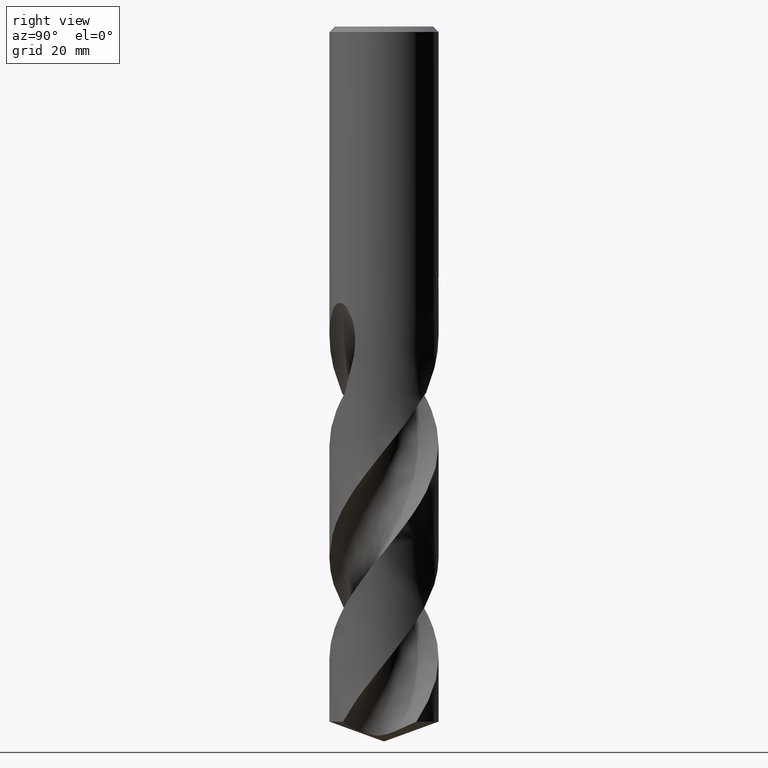
[diagram: clean part render]
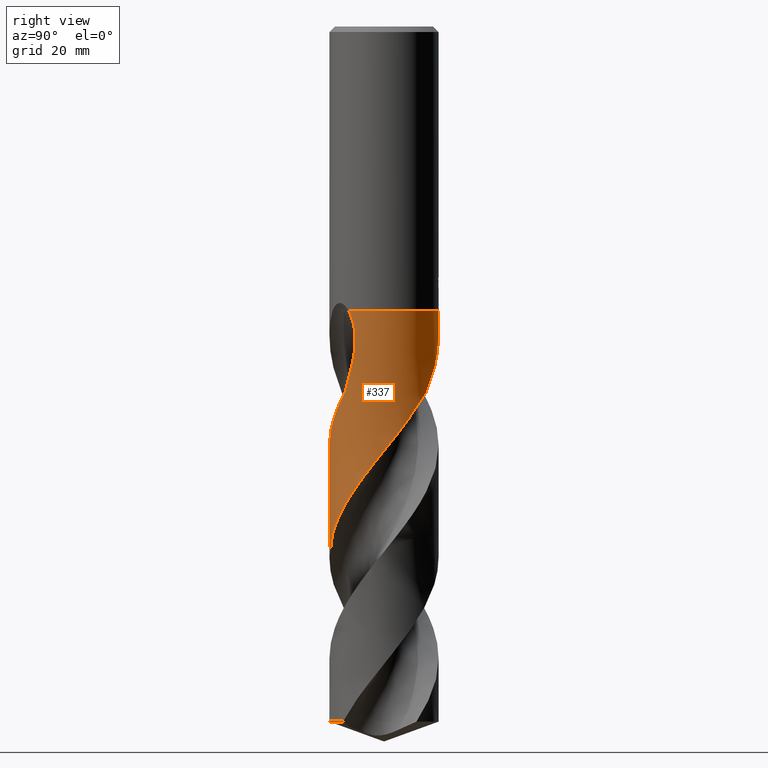
[diagram: same view with one face highlighted and labeled with its STEP entity id]
A machine part, right view. The second image highlights one B-rep face of the part: STEP entity #337.
In plain terms, the highlighted conical surface has half-angle 0 deg.
Its self-contained STEP definition (entity closure, byte-faithful):
#277=EDGE_CURVE('',#309,#495,#730,.T.);
#283=VERTEX_POINT('',#736);
#293=EDGE_CURVE('',#283,#419,#746,.T.);
#309=VERTEX_POINT('',#764);
#329=VERTEX_POINT('',#788);
#337=ADVANCED_FACE('',(#796),#797,.T.);
#343=EDGE_CURVE('',#421,#309,#803,.T.);
#407=VERTEX_POINT('',#875);
#419=VERTEX_POINT('',#889);
#421=VERTEX_POINT('',#891);
#443=EDGE_CURVE('',#407,#421,#914,.T.);
#463=EDGE_CURVE('',#329,#419,#935,.T.);
#495=VERTEX_POINT('',#968);
#545=EDGE_CURVE('',#589,#283,#1022,.T.);
#589=VERTEX_POINT('',#1069);
#601=EDGE_CURVE('',#329,#407,#1085,.T.);
#627=EDGE_CURVE('',#589,#495,#1113,.T.);
#730=B_SPLINE_CURVE_WITH_KNOTS('',3,(#1351,#1352,#1353,#1354,#1355,#1356,#1357,#1358,#1359,#1360,#1361,#1362,#1363,#1364,#1365,#1366,#1367,#1368,#1369,#1370,#1371,#1372,#1373,#1374,#1375,#1376,#1377,#1378,#1379,#1380,#1381,#1382,#1383,#1384,#1385,#1386,#1387,#1388,#1389,#1390,#1391,#1392,#1393,#1394,#1395,#1396,#1397,#1398,#1399,#1400,#1401,#1402,#1403,#1404,#1405,#1406,#1407,#1408,#1409,#1410,#1411,#1412,#1413,#1414,#1415,#1416,#1417,#1418,#1419,#1420,#1421,#1422,#1423,#1424,#1425,#1426,#1427,#1428,#1429,#1430,#1431,#1432,#1433,#1434,#1435,#1436,#1437,#1438,#1439,#1440,#1441,#1442,#1443,#1444),.UNSPECIFIED.,.F.,.F.,(4,2,2,2,2,2,2,2,2,2,2,2,2,2,2,2,2,2,2,2,2,2,2,2,2,2,2,2,2,2,2,2,2,2,2,2,2,2,2,2,2,2,2,2,2,2,4),(0.0,0.245189714686137,0.6198069740131,1.61410863201688,1.99983501323209,2.25905782693496,2.51206865555544,2.93972724412796,3.46358339691825,4.2248642811972,4.95648885570448,6.19320706034342,6.58149060093244,9.26436553136393,11.3031236955126,14.4880687737373,15.7102857219913,18.1528929593855,19.3836956176484,21.8224498703746,24.2763247446489,26.723621235269,29.1755935563908,31.6275561210472,34.07701767221,36.5334778140359,38.9806614643913,40.2100754367975,41.4250255356435,43.8690684822928,45.0990380407961,46.3181794062362,48.7593737046021,49.9896383405279,52.4271954940162,54.8812068582588,57.3249314680083,59.7766046714034,61.8976178964508,65.6010818575001,66.9940257141373,69.4397185412861,70.3580485187293,71.9641503313468,74.3760397664292,75.5817410566383,76.7878755449738),.UNSPECIFIED.);
#736=CARTESIAN_POINT('',(6.37210832433759,7.7067916096319,-67.125));
#746=B_SPLINE_CURVE_WITH_KNOTS('',3,(#1560,#1561,#1562,#1563,#1564,#1565,#1566,#1567,#1568,#1569,#1570,#1571,#1572,#1573),.UNSPECIFIED.,.F.,.F.,(4,2,2,2,2,2,4),(0.0,4.19901868503116,7.08405629255473,9.51715381814814,12.2384960017971,15.5642095157327,18.027615464297),.UNSPECIFIED.);
#764=CARTESIAN_POINT('',(6.95071689994662,-7.18929314941194,-67.125));
#788=CARTESIAN_POINT('',(-1.22455901755798E-015,9.9999,-52.0));
#796=FACE_OUTER_BOUND('',#2713,.T.);
#797=CONICAL_SURFACE('',#2714,9.99995,1.32695866534931E-006);
#803=B_SPLINE_CURVE_WITH_KNOTS('',3,(#2735,#2736,#2737,#2738),.UNSPECIFIED.,.F.,.F.,(4,4),(0.0,5.74706222105386),.UNSPECIFIED.);
#875=CARTESIAN_POINT('',(7.57965581687476,-6.52279217112707,-52.0));
#889=CARTESIAN_POINT('',(-9.34158471986024E-012,9.99990596502292,-56.4952590256855));
#891=CARTESIAN_POINT('',(8.13633816669059,-5.8136268654027,-61.6493312696097));
#914=B_SPLINE_CURVE_WITH_KNOTS('',3,(#3092,#3093,#3094,#3095,#3096,#3097,#3098,#3099,#3100,#3101),.UNSPECIFIED.,.F.,.F.,(4,2,2,2,4),(0.0,1.87970577133632,4.50636330676896,5.88290367057328,7.31960815038823),.UNSPECIFIED.);
#935=LINE('',#3204,#3205);
#968=CARTESIAN_POINT('',(-1.7151251788043E-014,-9.99993277754765,-76.7012574784816));
#1022=B_SPLINE_CURVE_WITH_KNOTS('',3,(#3840,#3841,#3842,#3843,#3844,#3845,#3846,#3847,#3848,#3849,#3850,#3851,#3852,#3853,#3854,#3855,#3856,#3857,#3858,#3859,#3860,#3861,#3862,#3863,#3864,#3865,#3866,#3867,#3868,#3869,#3870,#3871,#3872,#3873,#3874,#3875,#3876,#3877,#3878,#3879,#3880,#3881,#3882,#3883,#3884,#3885,#3886,#3887,#3888,#3889,#3890,#3891,#3892,#3893,#3894,#3895,#3896,#3897,#3898,#3899,#3900,#3901,#3902,#3903,#3904,#3905,#3906,#3907,#3908,#3909,#3910,#3911,#3912,#3913),.UNSPECIFIED.,.F.,.F.,(4,2,2,2,2,2,2,2,2,2,2,2,2,2,2,2,2,2,2,2,2,2,2,2,2,2,2,2,2,2,2,2,2,2,2,2,4),(0.0,4.99592086716757,6.53604494095048,9.3263019287885,11.3874317924821,14.9646787382594,16.3671879768931,19.882811568406,21.6342220701027,25.2652974673582,27.1241796994681,30.6439169486438,32.422906975393,35.4845190829346,37.6175829397097,39.6257175832861,40.8447834917092,42.3959529905057,45.6213434194011,48.7059139801822,50.3008407222187,53.6772413643839,55.4400026098076,56.2606226404963,57.8273328603964,61.4655001658289,63.2560189298873,66.5979523775087,68.2518061491661,70.3528105407871,73.3766050868999,74.7918547087921,76.656471941024,77.6835396763988,79.2175427373027,81.06753591057,83.7478990253079),.UNSPECIFIED.);
#1069=CARTESIAN_POINT('',(2.38867511773506E-015,-9.999960090411,-97.2843125862539));
#1085=CIRCLE('',#4876,9.9999);
#1113=LINE('',#5075,#5076);
#1351=CARTESIAN_POINT('',(6.95071689994662,-7.18929314941194,-67.125));
#1352=CARTESIAN_POINT('',(6.91542676468752,-7.22341230432376,-67.1903472797881));
#1353=CARTESIAN_POINT('',(6.87983616574976,-7.2573196202226,-67.2556671590033));
#1354=CARTESIAN_POINT('',(6.7890022409996,-7.34258317628931,-67.4206161697279));
#1355=CARTESIAN_POINT('',(6.73338936534004,-7.39362301535151,-67.5199926686623));
#1356=CARTESIAN_POINT('',(6.52654132844895,-7.57914311116936,-67.8827209058262));
#1357=CARTESIAN_POINT('',(6.37303751737425,-7.70882295783798,-68.1386436852246));
#1358=CARTESIAN_POINT('',(6.1471159037275,-7.88783207117327,-68.4969302810754));
#1359=CARTESIAN_POINT('',(6.0831822352579,-7.93725022697438,-68.5964727526612));
#1360=CARTESIAN_POINT('',(5.97464383896714,-8.01904356782231,-68.7628143235824));
#1361=CARTESIAN_POINT('',(5.93067786949201,-8.05161569135795,-68.829491536314));
#1362=CARTESIAN_POINT('',(5.84305851392668,-8.11541640731246,-68.9611968083209));
#1363=CARTESIAN_POINT('',(5.7994874234982,-8.14661131003523,-69.0261291430394));
#1364=CARTESIAN_POINT('',(5.68145764159558,-8.22968523806396,-69.2008320790926));
#1365=CARTESIAN_POINT('',(5.60630999596699,-8.28107127786501,-69.3110771530292));
#1366=CARTESIAN_POINT('',(5.43647101466543,-8.39379793046193,-69.5586493423897));
#1367=CARTESIAN_POINT('',(5.34216613728219,-8.45412319080527,-69.6950235588217));
#1368=CARTESIAN_POINT('',(5.10897462302021,-8.59785951637597,-70.0305540273144));
#1369=CARTESIAN_POINT('',(4.97052150177573,-8.67859899282644,-70.2286511638398));
#1370=CARTESIAN_POINT('',(4.69535239422619,-8.83039517265335,-70.6200006426819));
#1371=CARTESIAN_POINT('',(4.55896513403902,-8.9015696481345,-70.8125742460425));
#1372=CARTESIAN_POINT('',(4.18820344643911,-9.08432252762162,-71.3299348024432));
#1373=CARTESIAN_POINT('',(3.95043441100517,-9.19024149732999,-71.6553731169679));
#1374=CARTESIAN_POINT('',(3.63234498655725,-9.31725822228393,-72.081499588104));
#1375=CARTESIAN_POINT('',(3.555971734607,-9.34667243514247,-72.183095291523));
#1376=CARTESIAN_POINT('',(2.9496798885917,-9.57168216932252,-72.98584925086));
#1377=CARTESIAN_POINT('',(2.40443801524195,-9.72297321091038,-73.6845467663887));
#1378=CARTESIAN_POINT('',(1.42765320745381,-9.90679574171289,-74.9196358329038));
#1379=CARTESIAN_POINT('',(1.00150805464463,-9.95888035711133,-75.4537124009734));
#1380=CARTESIAN_POINT('',(-0.094829847064595,-10.0218742983325,-76.820774886379));
#1381=CARTESIAN_POINT('',(-0.765712005616832,-9.99307713691967,-77.6497317236758));
#1382=CARTESIAN_POINT('',(-1.68363948400793,-9.86053869974695,-78.8021178777434));
#1383=CARTESIAN_POINT('',(-1.93660559086774,-9.8139876331698,-79.1215778166864));
#1384=CARTESIAN_POINT('',(-2.68870536149723,-9.64538815250792,-80.0802864591181));
#1385=CARTESIAN_POINT('',(-3.18066709310061,-9.49453457411013,-80.7188758667787));
#1386=CARTESIAN_POINT('',(-3.89988967095272,-9.21176943356934,-81.679706753129));
#1387=CARTESIAN_POINT('',(-4.13714828650697,-9.10768375377343,-82.0014399341293));
#1388=CARTESIAN_POINT('',(-4.83181319441872,-8.7701684746079,-82.9610027166094));
#1389=CARTESIAN_POINT('',(-5.27537037502964,-8.51072313054636,-83.5976748890698));
#1390=CARTESIAN_POINT('',(-6.12110169008951,-7.92447862789392,-84.8776656085687));
#1391=CARTESIAN_POINT('',(-6.52200419043612,-7.59796343016022,-85.5187010620776));
#1392=CARTESIAN_POINT('',(-7.26898332340254,-6.88665916032331,-86.8004381511128));
#1393=CARTESIAN_POINT('',(-7.61385940688033,-6.50331003167078,-87.4392140051587));
#1394=CARTESIAN_POINT('',(-8.24195502133223,-5.68639791975365,-88.7210002597905));
#1395=CARTESIAN_POINT('',(-8.52429966566445,-5.25372202962833,-89.3616499368296));
#1396=CARTESIAN_POINT('',(-9.01980163532856,-4.34838939517647,-90.6441846938658));
#1397=CARTESIAN_POINT('',(-9.23207041283446,-3.87736054329047,-91.283996113385));
#1398=CARTESIAN_POINT('',(-9.58180437701323,-2.90750157792703,-92.5663885951295));
#1399=CARTESIAN_POINT('',(-9.71890830181364,-2.4099068398868,-93.2065287812782));
#1400=CARTESIAN_POINT('',(-9.91547556171757,-1.39632685433278,-94.4897151250936));
#1401=CARTESIAN_POINT('',(-9.97437422535803,-0.882068922514831,-95.1306113779449));
#1402=CARTESIAN_POINT('',(-10.0120958199149,0.148812045761002,-96.4136114302241));
#1403=CARTESIAN_POINT('',(-9.99116847008372,0.664081512236491,-97.0532719449332));
#1404=CARTESIAN_POINT('',(-9.9002095176172,1.43248709594514,-98.0150008998875));
#1405=CARTESIAN_POINT('',(-9.85982951811306,1.68818515078486,-98.3363930024092));
#1406=CARTESIAN_POINT('',(-9.75990031211985,2.19294400367073,-98.9756934486478));
#1407=CARTESIAN_POINT('',(-9.70064094512306,2.44175431347708,-99.2932679288823));
#1408=CARTESIAN_POINT('',(-9.49370842712579,3.18326989782187,-100.250647520562));
#1409=CARTESIAN_POINT('',(-9.31746397297871,3.66725266874855,-100.889655608836));
#1410=CARTESIAN_POINT('',(-8.99768784906364,4.37126348691714,-101.850842549109));
#1411=CARTESIAN_POINT('',(-8.88150804778188,4.60273768796067,-102.172428670045));
#1412=CARTESIAN_POINT('',(-8.63250383236329,5.05421593123131,-102.813033208165));
#1413=CARTESIAN_POINT('',(-8.49997857059905,5.27404420358333,-103.131659889868));
#1414=CARTESIAN_POINT('',(-8.07720941198032,5.91793744094487,-104.089416511432));
#1415=CARTESIAN_POINT('',(-7.76255061069024,6.3250445221159,-104.727836031049));
#1416=CARTESIAN_POINT('',(-7.24434998311845,6.89825071470573,-105.688494934218));
#1417=CARTESIAN_POINT('',(-7.06328337674792,7.08354088780518,-106.010210889066));
#1418=CARTESIAN_POINT('',(-6.50252817733116,7.61445725638917,-106.969703614345));
#1419=CARTESIAN_POINT('',(-6.10337496815433,7.93796686417797,-107.606438542713));
#1420=CARTESIAN_POINT('',(-5.25642022059384,8.52268428344663,-108.886633861566));
#1421=CARTESIAN_POINT('',(-4.80929946333799,8.78277307653942,-109.527888222285));
#1422=CARTESIAN_POINT('',(-3.880516099139,9.23070202298288,-110.809165419415));
#1423=CARTESIAN_POINT('',(-3.40069229840329,9.41802761861542,-111.447300993242));
#1424=CARTESIAN_POINT('',(-2.41521004106365,9.71763702913455,-112.728535421859));
#1425=CARTESIAN_POINT('',(-1.91064437883532,9.82931795802813,-113.369305746618));
#1426=CARTESIAN_POINT('',(-0.957408464300018,9.96405713259914,-114.565622837597));
#1427=CARTESIAN_POINT('',(-0.511693338517306,9.99685264875924,-115.119429549578));
#1428=CARTESIAN_POINT('',(0.71396204383677,10.0048663084566,-116.643827473273));
#1429=CARTESIAN_POINT('',(1.49149373952036,9.91883663203927,-117.610258668264));
#1430=CARTESIAN_POINT('',(2.53708215086357,9.6772424088374,-118.943644307828));
#1431=CARTESIAN_POINT('',(2.81973895850649,9.59868765074986,-119.307852263835));
#1432=CARTESIAN_POINT('',(3.58787754550079,9.34836333384641,-120.312537106785));
#1433=CARTESIAN_POINT('',(4.06434717378465,9.15128907767789,-120.951997363172));
#1434=CARTESIAN_POINT('',(4.69604903364095,8.83087566035089,-121.832250060942));
#1435=CARTESIAN_POINT('',(4.86593828911359,8.73841560641178,-122.072460123856));
#1436=CARTESIAN_POINT('',(5.32533422040068,8.47083824208389,-122.732933009842));
#1437=CARTESIAN_POINT('',(5.60866242456028,8.28595493045552,-123.152600802711));
#1438=CARTESIAN_POINT('',(6.29252496385389,7.78856237675605,-124.204455809236));
#1439=CARTESIAN_POINT('',(6.67975224084636,7.45912868586188,-124.835600516296));
#1440=CARTESIAN_POINT('',(7.22054476568974,6.92301269984878,-125.782598382424));
#1441=CARTESIAN_POINT('',(7.39395753841534,6.73749440332855,-126.098035830976));
#1442=CARTESIAN_POINT('',(7.72641858962307,6.3534996482684,-126.729206814581));
#1443=CARTESIAN_POINT('',(7.88531216166962,6.15519109551588,-127.044678479187));
#1444=CARTESIAN_POINT('',(8.03648954279246,5.95103653396509,-127.360297657338));
#1560=CARTESIAN_POINT('',(6.37210832433758,7.7067916096319,-67.125));
#1561=CARTESIAN_POINT('',(5.80677782613083,8.17421457084669,-65.9329423603897));
#1562=CARTESIAN_POINT('',(5.16617195451055,8.59908156742135,-64.8071291916848));
#1563=CARTESIAN_POINT('',(3.96222624358277,9.197766459094,-62.8043986480784));
#1564=CARTESIAN_POINT('',(3.45881089086977,9.3981547751149,-61.9955449041651));
#1565=CARTESIAN_POINT('',(2.50943514499768,9.69058919198001,-60.473210262985));
#1566=CARTESIAN_POINT('',(2.07169933526605,9.79307087255353,-59.7728841316095));
#1567=CARTESIAN_POINT('',(1.14176297046135,9.94696926917367,-58.2877871664536));
#1568=CARTESIAN_POINT('',(0.64513961918567,9.99158538418907,-57.4961456119384));
#1569=CARTESIAN_POINT('',(-0.465425347993749,10.0077275359553,-55.7720694584479));
#1570=CARTESIAN_POINT('',(-1.11537241935606,9.96064226909036,-54.7927874410165));
#1571=CARTESIAN_POINT('',(-2.27753852412195,9.7500482265594,-53.238472085499));
#1572=CARTESIAN_POINT('',(-2.82751758209847,9.61123353217231,-52.5635131340338));
#1573=CARTESIAN_POINT('',(-3.40156588587114,9.40358173963929,-52.0));
#2713=EDGE_LOOP('',(#5421,#5422,#5423,#5424,#5425,#5426,#5427,#5428));
#2714=AXIS2_PLACEMENT_3D('',#5429,#5430,#5431);
#2735=CARTESIAN_POINT('',(8.1363381667432,-5.81362686532906,-61.6493312696386));
#2736=CARTESIAN_POINT('',(7.81395273404516,-6.26481874486972,-63.4830029310949));
#2737=CARTESIAN_POINT('',(7.42539302909624,-6.73036580077563,-65.3275862214703));
#2738=CARTESIAN_POINT('',(6.95071689994662,-7.18929314941194,-67.125));
#3092=CARTESIAN_POINT('',(7.57965581687475,-6.52279217112708,-52.0));
#3093=CARTESIAN_POINT('',(7.82675292524328,-6.23565985676669,-52.4990854151533));
#3094=CARTESIAN_POINT('',(8.02133323949565,-5.9766015222432,-53.1192687544532));
#3095=CARTESIAN_POINT('',(8.37002509122271,-5.48313723230027,-54.8257523683219));
#3096=CARTESIAN_POINT('',(8.48531372293587,-5.29128427482503,-56.0317279675843));
#3097=CARTESIAN_POINT('',(8.4945377730813,-5.27645957209898,-58.0868459417852));
#3098=CARTESIAN_POINT('',(8.46715278940277,-5.32132179637558,-58.793579144329));
#3099=CARTESIAN_POINT('',(8.35140752206809,-5.50128635083757,-60.2236222960189));
#3100=CARTESIAN_POINT('',(8.2606933925526,-5.63958653234298,-60.9420286859693));
#3101=CARTESIAN_POINT('',(8.13633816669058,-5.81362686540271,-61.6493312696097));
#3204=CARTESIAN_POINT('',(-1.22456514058975E-015,9.99995,-89.680148828669));
#3205=VECTOR('',#5567,1.0);
#3840=CARTESIAN_POINT('',(-6.61057286695191,7.50335434127416,-127.360297657338));
#3841=CARTESIAN_POINT('',(-7.3929051817938,6.81410500438358,-126.061783599837));
#3842=CARTESIAN_POINT('',(-8.0623543128683,6.00700409652408,-124.782914277452));
#3843=CARTESIAN_POINT('',(-8.75914150886008,4.83533944555827,-123.085509483834));
#3844=CARTESIAN_POINT('',(-8.90981681718146,4.55173851262485,-122.684294884871));
#3845=CARTESIAN_POINT('',(-9.29484750604176,3.73425516670658,-121.559306154253));
#3846=CARTESIAN_POINT('',(-9.49660881970714,3.18655543677382,-120.838658411534));
#3847=CARTESIAN_POINT('',(-9.76258854875856,2.20842059827677,-119.579668427645));
#3848=CARTESIAN_POINT('',(-9.84852138649505,1.78636059401758,-119.043202313827));
#3849=CARTESIAN_POINT('',(-10.0084724875651,0.621700440895016,-117.579834148231));
#3850=CARTESIAN_POINT('',(-10.0269875097701,-0.126294724126139,-116.659959200991));
#3851=CARTESIAN_POINT('',(-9.93666349799557,-1.16102319855751,-115.36839496196));
#3852=CARTESIAN_POINT('',(-9.89848169476576,-1.45084086421431,-115.003647283787));
#3853=CARTESIAN_POINT('',(-9.72054664869215,-2.45886132607305,-113.728437445792));
#3854=CARTESIAN_POINT('',(-9.51460718437101,-3.16363193941126,-112.825099156547));
#3855=CARTESIAN_POINT('',(-9.09313238705689,-4.17704700129925,-111.461113252011));
#3856=CARTESIAN_POINT('',(-8.93480066803664,-4.50572268622098,-111.006137239483));
#3857=CARTESIAN_POINT('',(-8.39479709510826,-5.48607404046623,-109.612341788063));
#3858=CARTESIAN_POINT('',(-7.95672625364369,-6.10416277512121,-108.681008261175));
#3859=CARTESIAN_POINT('',(-7.19513704855624,-6.95550589493162,-107.260590081038));
#3860=CARTESIAN_POINT('',(-6.92100014647649,-7.22832625453401,-106.778073658745));
#3861=CARTESIAN_POINT('',(-6.08365869547125,-7.97022385631334,-105.386412430305));
#3862=CARTESIAN_POINT('',(-5.48423720591526,-8.39392614008707,-104.483736069667));
#3863=CARTESIAN_POINT('',(-4.5205075940611,-8.92755047981767,-103.112834110475));
#3864=CARTESIAN_POINT('',(-4.18723544761833,-9.08864383061849,-102.651035710351));
#3865=CARTESIAN_POINT('',(-3.25740213228959,-9.47599780670701,-101.39846172761));
#3866=CARTESIAN_POINT('',(-2.64728271340982,-9.66421491868922,-100.611571827676));
#3867=CARTESIAN_POINT('',(-1.58870627587491,-9.88292858678218,-99.2676895474809));
#3868=CARTESIAN_POINT('',(-1.14886151740886,-9.94365788836033,-98.7139202527045));
#3869=CARTESIAN_POINT('',(-0.289368140567619,-10.0045017577413,-97.6425382432444));
#3870=CARTESIAN_POINT('',(0.129083531922788,-10.0078731148826,-97.1246375423393));
#3871=CARTESIAN_POINT('',(0.800340229883467,-9.97111423714605,-96.2904300926045));
#3872=CARTESIAN_POINT('',(1.05309280642363,-9.94758535543006,-95.9755159384193));
#3873=CARTESIAN_POINT('',(1.6243611531873,-9.87242074894247,-95.2587265912367));
#3874=CARTESIAN_POINT('',(1.94170972948814,-9.81493256362878,-94.8562218569169));
#3875=CARTESIAN_POINT('',(2.90916676257275,-9.59090770409165,-93.6202935005647));
#3876=CARTESIAN_POINT('',(3.54574482059184,-9.37427749567922,-92.7920323027599));
#3877=CARTESIAN_POINT('',(4.73978559077721,-8.82866424233177,-91.1606278293335));
#3878=CARTESIAN_POINT('',(5.29651915597914,-8.50637358970075,-90.3604797510124));
#3879=CARTESIAN_POINT('',(6.08891923797096,-7.93941624777173,-89.15091395161));
#3880=CARTESIAN_POINT('',(6.34919432344226,-7.73285073223496,-88.7394089440553));
#3881=CARTESIAN_POINT('',(7.1269172435638,-7.04983601376771,-87.4544263373441));
#3882=CARTESIAN_POINT('',(7.60450175525476,-6.53180553259841,-86.5787388688841));
#3883=CARTESIAN_POINT('',(8.24294934581366,-5.67338716172284,-85.2502650477382));
#3884=CARTESIAN_POINT('',(8.4455718011306,-5.36710896164291,-84.7956174028291));
#3885=CARTESIAN_POINT('',(8.71718899304925,-4.90292306183801,-84.1278748814123));
#3886=CARTESIAN_POINT('',(8.79962323565095,-4.75337686447168,-83.9157901538119));
#3887=CARTESIAN_POINT('',(9.02805493585779,-4.312675852148,-83.2982279697818));
#3888=CARTESIAN_POINT('',(9.16360597081565,-4.01661028560676,-82.891743695291));
#3889=CARTESIAN_POINT('',(9.56537778530471,-3.01230853354442,-81.5453599313477));
#3890=CARTESIAN_POINT('',(9.7657178460232,-2.28069838398919,-80.6133272697035));
#3891=CARTESIAN_POINT('',(9.93876279597841,-1.16545167121228,-79.2100060537362));
#3892=CARTESIAN_POINT('',(9.97522972379304,-0.794966678403723,-78.7458681787502));
#3893=CARTESIAN_POINT('',(10.020367433237,0.270733560845608,-77.418919790479));
#3894=CARTESIAN_POINT('',(9.97737650242788,0.965195007387566,-76.5620858365128));
#3895=CARTESIAN_POINT('',(9.80638909989009,1.98774945357349,-75.2712234144589));
#3896=CARTESIAN_POINT('',(9.73252005915742,2.32252262690302,-74.8421447223581));
#3897=CARTESIAN_POINT('',(9.52609529993738,3.07272467809515,-73.8721339111519));
#3898=CARTESIAN_POINT('',(9.38286741392791,3.48591681351522,-73.3292336930618));
#3899=CARTESIAN_POINT('',(8.96803395601875,4.4686735314389,-72.0181889549273));
#3900=CARTESIAN_POINT('',(8.6932305994921,4.96943070957872,-71.3446838687094));
#3901=CARTESIAN_POINT('',(8.28164197302364,5.6099748087358,-70.356244238675));
#3902=CARTESIAN_POINT('',(8.18162934631365,5.75276983676066,-70.1126451100911));
#3903=CARTESIAN_POINT('',(7.92588758549575,6.10241098147513,-69.5225644568875));
#3904=CARTESIAN_POINT('',(7.79503740966732,6.26554544484211,-69.244520426193));
#3905=CARTESIAN_POINT('',(7.65099046238572,6.43950542730945,-68.954253973113));
#3906=CARTESIAN_POINT('',(7.59801030794319,6.50197573376507,-68.8526316457492));
#3907=CARTESIAN_POINT('',(7.46102526827296,6.65936648665013,-68.6025234191674));
#3908=CARTESIAN_POINT('',(7.37486303117794,6.7547994575518,-68.4561197109664));
#3909=CARTESIAN_POINT('',(7.17502147359486,6.96727520066458,-68.1397251942835));
#3910=CARTESIAN_POINT('',(7.05975725812215,7.08426313540045,-67.9717659718073));
#3911=CARTESIAN_POINT('',(6.7618650108757,7.37126108607623,-67.5708123612804));
#3912=CARTESIAN_POINT('',(6.57337735754555,7.54037927611758,-67.3440190010736));
#3913=CARTESIAN_POINT('',(6.37210832433759,7.7067916096319,-67.125));
#4876=AXIS2_PLACEMENT_3D('',#5733,#5734,#5735);
#5075=CARTESIAN_POINT('',(1.22463532099147E-015,-9.99995,-89.680148828669));
#5076=VECTOR('',#5761,1.0);
#5421=ORIENTED_EDGE('',*,*,#463,.F.);
#5422=ORIENTED_EDGE('',*,*,#601,.T.);
#5423=ORIENTED_EDGE('',*,*,#443,.T.);
#5424=ORIENTED_EDGE('',*,*,#343,.T.);
#5425=ORIENTED_EDGE('',*,*,#277,.T.);
#5426=ORIENTED_EDGE('',*,*,#627,.F.);
#5427=ORIENTED_EDGE('',*,*,#545,.T.);
#5428=ORIENTED_EDGE('',*,*,#293,.T.);
#5429=CARTESIAN_POINT('',(0.0,0.0,-89.680148828669));
#5430=DIRECTION('',(0.0,-0.0,-1.0));
#5431=DIRECTION('',(0.0,1.0,0.0));
#5567=DIRECTION('',(-1.62500201284595E-022,1.32695866534892E-006,-0.99999999999912));
#5733=CARTESIAN_POINT('',(0.0,0.0,-52.0));
#5734=DIRECTION('',(0.0,0.0,-1.0));
#5735=DIRECTION('',(0.0,1.0,0.0));
#5761=DIRECTION('',(-1.62500201284595E-022,1.32695866534892E-006,0.99999999999912));